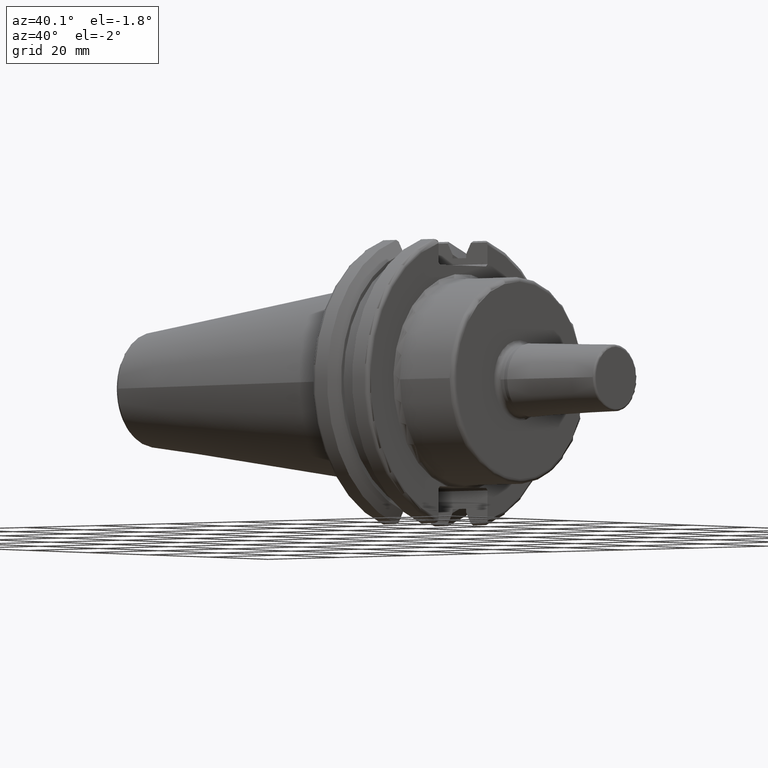
[diagram: clean part render]
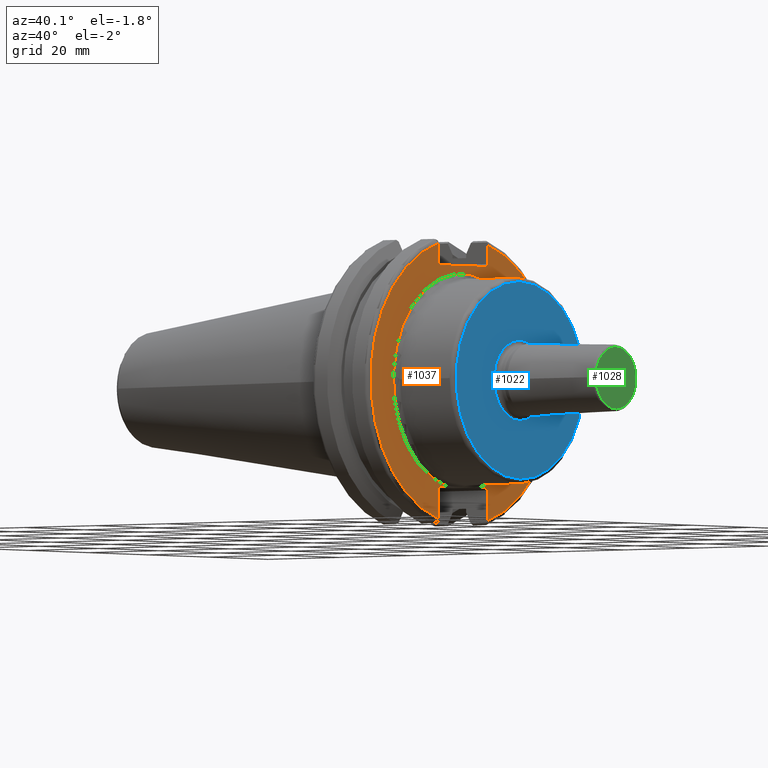
[diagram: same view with three faces highlighted in distinct colors, each labeled with its STEP entity id]
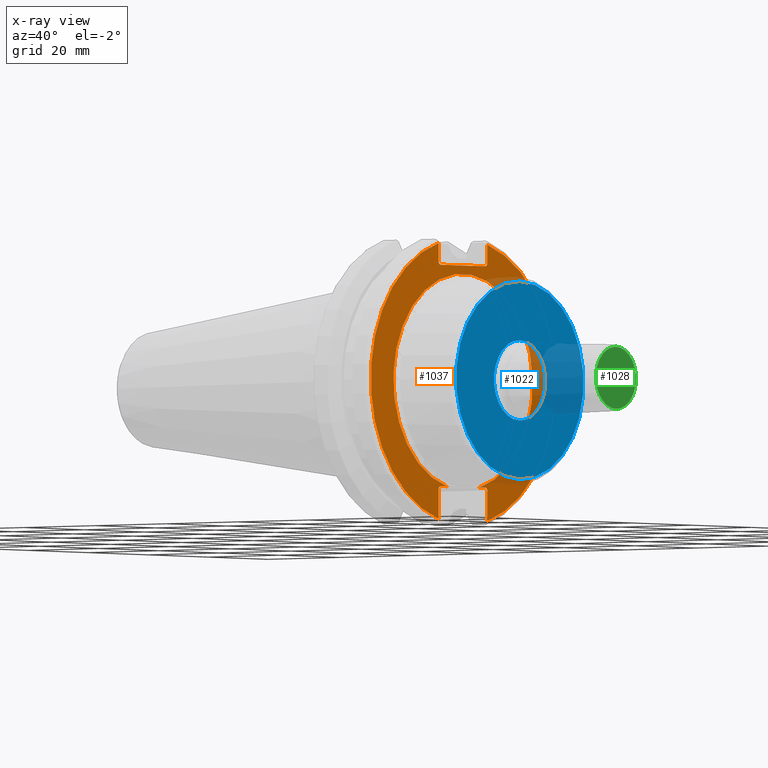
[diagram: x-ray of the same camera — body ghosted, the three highlighted faces saturated]
A machine part, auxiliary view with three faces highlighted in distinct colors.
The next image is the same camera in x-ray (body ghosted, the three faces saturated) — at least one of them is partly hidden behind the body in this view.
Their STEP definitions:

[orange] entity #1037 — the highlighted planar face has unit normal (1, 0, 0).
#52=PLANE('',#1150);
#94=LINE('',#1677,#164);
#100=LINE('',#1703,#170);
#101=LINE('',#1704,#171);
#102=LINE('',#1706,#172);
#103=LINE('',#1708,#173);
#104=LINE('',#1710,#174);
#105=LINE('',#1712,#175);
#106=LINE('',#1714,#176);
#107=LINE('',#1718,#177);
#108=LINE('',#1720,#178);
#109=LINE('',#1721,#179);
#164=VECTOR('',#1334,10.);
#170=VECTOR('',#1342,10.);
#171=VECTOR('',#1343,10.);
#172=VECTOR('',#1344,10.);
#173=VECTOR('',#1345,10.);
#174=VECTOR('',#1346,10.);
#175=VECTOR('',#1347,10.);
#176=VECTOR('',#1348,10.);
#177=VECTOR('',#1351,10.);
#178=VECTOR('',#1352,10.);
#179=VECTOR('',#1353,10.);
#245=FACE_OUTER_BOUND('',#308,.T.);
#308=EDGE_LOOP('',(#788,#789,#790,#791,#792,#793,#794,#795,#796,#797,#798,
#799,#800,#801));
#374=CIRCLE('',#1106,23.225);
#399=CIRCLE('',#1146,30.75);
#401=CIRCLE('',#1151,30.75);
#430=VERTEX_POINT('',#1530);
#431=VERTEX_POINT('',#1537);
#463=VERTEX_POINT('',#1632);
#464=VERTEX_POINT('',#1639);
#470=VERTEX_POINT('',#1676);
#477=VERTEX_POINT('',#1702);
#478=VERTEX_POINT('',#1705);
#479=VERTEX_POINT('',#1707);
#480=VERTEX_POINT('',#1709);
#481=VERTEX_POINT('',#1711);
#482=VERTEX_POINT('',#1713);
#483=VERTEX_POINT('',#1715);
#484=VERTEX_POINT('',#1717);
#485=VERTEX_POINT('',#1719);
#535=EDGE_CURVE('',#430,#431,#374,.T.);
#579=EDGE_CURVE('',#463,#464,#399,.T.);
#587=EDGE_CURVE('',#470,#464,#94,.T.);
#596=EDGE_CURVE('',#430,#477,#100,.T.);
#597=EDGE_CURVE('',#470,#477,#101,.T.);
#598=EDGE_CURVE('',#463,#478,#102,.T.);
#599=EDGE_CURVE('',#479,#478,#103,.T.);
#600=EDGE_CURVE('',#479,#480,#104,.T.);
#601=EDGE_CURVE('',#481,#480,#105,.T.);
#602=EDGE_CURVE('',#481,#482,#106,.T.);
#603=EDGE_CURVE('',#483,#482,#401,.T.);
#604=EDGE_CURVE('',#483,#484,#107,.T.);
#605=EDGE_CURVE('',#485,#484,#108,.T.);
#606=EDGE_CURVE('',#485,#431,#109,.T.);
#788=ORIENTED_EDGE('',*,*,#535,.F.);
#789=ORIENTED_EDGE('',*,*,#596,.T.);
#790=ORIENTED_EDGE('',*,*,#597,.F.);
#791=ORIENTED_EDGE('',*,*,#587,.T.);
#792=ORIENTED_EDGE('',*,*,#579,.F.);
#793=ORIENTED_EDGE('',*,*,#598,.T.);
#794=ORIENTED_EDGE('',*,*,#599,.F.);
#795=ORIENTED_EDGE('',*,*,#600,.T.);
#796=ORIENTED_EDGE('',*,*,#601,.F.);
#797=ORIENTED_EDGE('',*,*,#602,.T.);
#798=ORIENTED_EDGE('',*,*,#603,.F.);
#799=ORIENTED_EDGE('',*,*,#604,.T.);
#800=ORIENTED_EDGE('',*,*,#605,.F.);
#801=ORIENTED_EDGE('',*,*,#606,.T.);
#1037=ADVANCED_FACE('',(#245),#52,.T.);
#1106=AXIS2_PLACEMENT_3D('',#1538,#1227,#1228);
#1146=AXIS2_PLACEMENT_3D('',#1640,#1324,#1325);
#1150=AXIS2_PLACEMENT_3D('',#1701,#1340,#1341);
#1151=AXIS2_PLACEMENT_3D('',#1716,#1349,#1350);
#1227=DIRECTION('center_axis',(1.,0.,0.));
#1228=DIRECTION('ref_axis',(0.,-1.,-1.22464679914735E-16));
#1324=DIRECTION('center_axis',(-1.,0.,0.));
#1325=DIRECTION('ref_axis',(0.,1.,-6.12323399573677E-17));
#1334=DIRECTION('',(0.,0.,-1.));
#1340=DIRECTION('center_axis',(1.,0.,0.));
#1341=DIRECTION('ref_axis',(0.,0.,-1.));
#1342=DIRECTION('',(0.,1.,0.));
#1343=DIRECTION('',(0.,-0.707106781186549,0.707106781186546));
#1344=DIRECTION('',(0.,0.,-1.));
#1345=DIRECTION('',(0.,0.707106781186549,0.707106781186546));
#1346=DIRECTION('',(0.,-1.,0.));
#1347=DIRECTION('',(0.,0.70710678118655,-0.707106781186545));
#1348=DIRECTION('',(0.,0.,1.));
#1349=DIRECTION('center_axis',(-1.,0.,0.));
#1350=DIRECTION('ref_axis',(0.,-1.,1.60812264967664E-16));
#1351=DIRECTION('',(0.,0.,1.));
#1352=DIRECTION('',(0.,-0.707106781186549,-0.707106781186546));
#1353=DIRECTION('',(0.,1.,0.));
#1530=CARTESIAN_POINT('',(19.05,5.35169365715191,-22.6));
#1537=CARTESIAN_POINT('',(19.05,-5.35169365715191,-22.6));
#1538=CARTESIAN_POINT('Origin',(19.05,0.,0.));
#1632=CARTESIAN_POINT('',(19.05,8.19,29.6392712461019));
#1639=CARTESIAN_POINT('',(19.05,8.19,-29.6392712461019));
#1640=CARTESIAN_POINT('Origin',(19.05,0.,0.));
#1676=CARTESIAN_POINT('',(19.05,8.19,-23.1));
#1677=CARTESIAN_POINT('',(19.05,8.19,-11.3));
#1701=CARTESIAN_POINT('Origin',(19.05,0.,0.));
#1702=CARTESIAN_POINT('',(19.05,7.69,-22.6));
#1703=CARTESIAN_POINT('',(19.05,-2.77555756156289E-16,-22.6));
#1704=CARTESIAN_POINT('',(19.05,0.242499999999989,-15.1525));
#1705=CARTESIAN_POINT('',(19.05,8.19,25.5));
#1706=CARTESIAN_POINT('',(19.05,8.19,12.5));
#1707=CARTESIAN_POINT('',(19.05,7.69,25.));
#1708=CARTESIAN_POINT('',(19.05,-0.35750000000001,16.9525));
#1709=CARTESIAN_POINT('',(19.05,-7.69,25.));
#1710=CARTESIAN_POINT('',(19.05,0.,25.));
#1711=CARTESIAN_POINT('',(19.05,-8.19,25.5));
#1712=CARTESIAN_POINT('',(19.05,0.357500000000014,16.9525));
#1713=CARTESIAN_POINT('',(19.05,-8.19,29.6392712461019));
#1714=CARTESIAN_POINT('',(19.05,-8.19,12.5));
#1715=CARTESIAN_POINT('',(19.05,-8.19,-29.6392712461019));
#1716=CARTESIAN_POINT('Origin',(19.05,0.,0.));
#1717=CARTESIAN_POINT('',(19.05,-8.19,-23.1));
#1718=CARTESIAN_POINT('',(19.05,-8.19,-11.3));
#1719=CARTESIAN_POINT('',(19.05,-7.69,-22.6));
#1720=CARTESIAN_POINT('',(19.05,-0.242499999999991,-15.1525));
#1721=CARTESIAN_POINT('',(19.05,-2.77555756156289E-16,-22.6));

[blue] entity #1022 — the highlighted planar face has unit normal (1, 0, 0).
#42=FACE_BOUND('',#292,.T.);
#47=PLANE('',#1114);
#230=FACE_OUTER_BOUND('',#291,.T.);
#291=EDGE_LOOP('',(#709));
#292=EDGE_LOOP('',(#710));
#378=CIRCLE('',#1112,21.225);
#380=CIRCLE('',#1115,8.625);
#434=VERTEX_POINT('',#1553);
#435=VERTEX_POINT('',#1557);
#541=EDGE_CURVE('',#434,#434,#378,.T.);
#543=EDGE_CURVE('',#435,#435,#380,.T.);
#709=ORIENTED_EDGE('',*,*,#541,.T.);
#710=ORIENTED_EDGE('',*,*,#543,.F.);
#1022=ADVANCED_FACE('',(#230,#42),#47,.T.);
#1112=AXIS2_PLACEMENT_3D('',#1554,#1240,#1241);
#1114=AXIS2_PLACEMENT_3D('',#1556,#1244,#1245);
#1115=AXIS2_PLACEMENT_3D('',#1558,#1246,#1247);
#1240=DIRECTION('center_axis',(1.,0.,0.));
#1241=DIRECTION('ref_axis',(0.,0.,-1.));
#1244=DIRECTION('center_axis',(1.,0.,0.));
#1245=DIRECTION('ref_axis',(0.,0.,-1.));
#1246=DIRECTION('center_axis',(1.,0.,0.));
#1247=DIRECTION('ref_axis',(0.,0.,-1.));
#1553=CARTESIAN_POINT('',(35.,-2.59931283119026E-15,21.225));
#1554=CARTESIAN_POINT('Origin',(35.,0.,0.));
#1556=CARTESIAN_POINT('Origin',(35.,8.625,0.));
#1557=CARTESIAN_POINT('',(35.,-1.05625786426459E-15,8.625));
#1558=CARTESIAN_POINT('Origin',(35.,0.,0.));

[green] entity #1028 — the highlighted planar face has unit normal (1, 0, 0).
#48=PLANE('',#1130);
#236=FACE_OUTER_BOUND('',#298,.T.);
#298=EDGE_LOOP('',(#735));
#388=CIRCLE('',#1128,6.68238730899839);
#442=VERTEX_POINT('',#1580);
#554=EDGE_CURVE('',#442,#442,#388,.T.);
#735=ORIENTED_EDGE('',*,*,#554,.T.);
#1028=ADVANCED_FACE('',(#236),#48,.T.);
#1128=AXIS2_PLACEMENT_3D('',#1581,#1275,#1276);
#1130=AXIS2_PLACEMENT_3D('',#1583,#1279,#1280);
#1275=DIRECTION('center_axis',(1.,0.,0.));
#1276=DIRECTION('ref_axis',(0.,0.,-1.));
#1279=DIRECTION('center_axis',(1.,0.,0.));
#1280=DIRECTION('ref_axis',(0.,0.,-1.));
#1580=CARTESIAN_POINT('',(61.98,-8.18356422862777E-16,6.68238730899839));
#1581=CARTESIAN_POINT('Origin',(61.98,0.,0.));
#1583=CARTESIAN_POINT('Origin',(61.98,6.95729485901294E-33,0.));